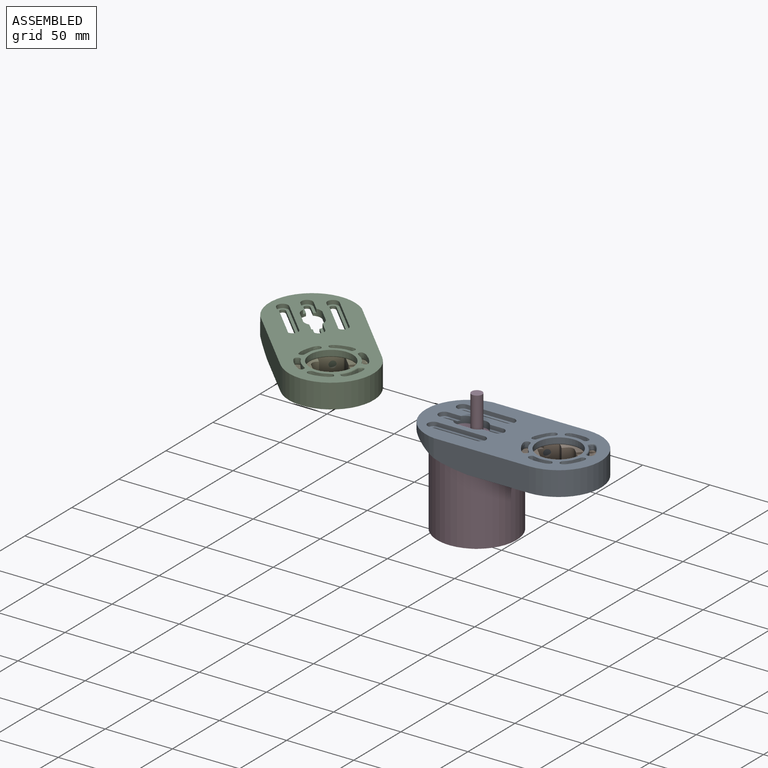
[diagram: assembled view]
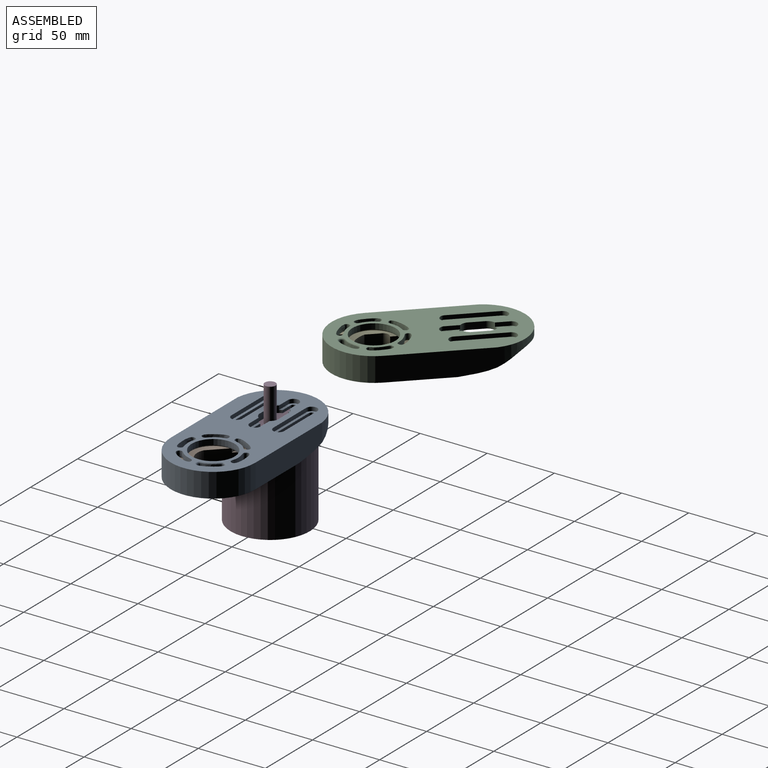
[diagram: assembled view, second angle]
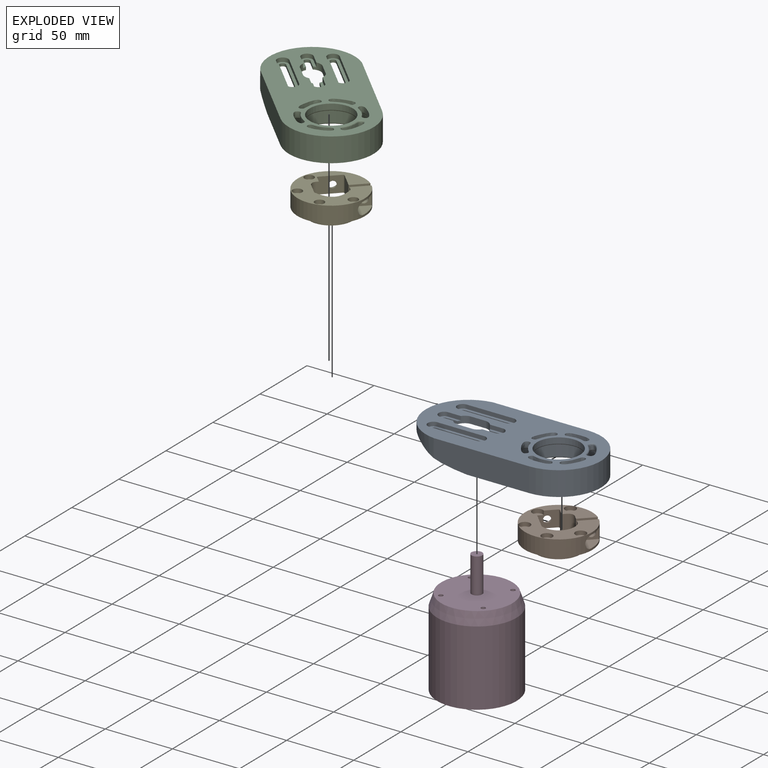
[diagram: exploded view]
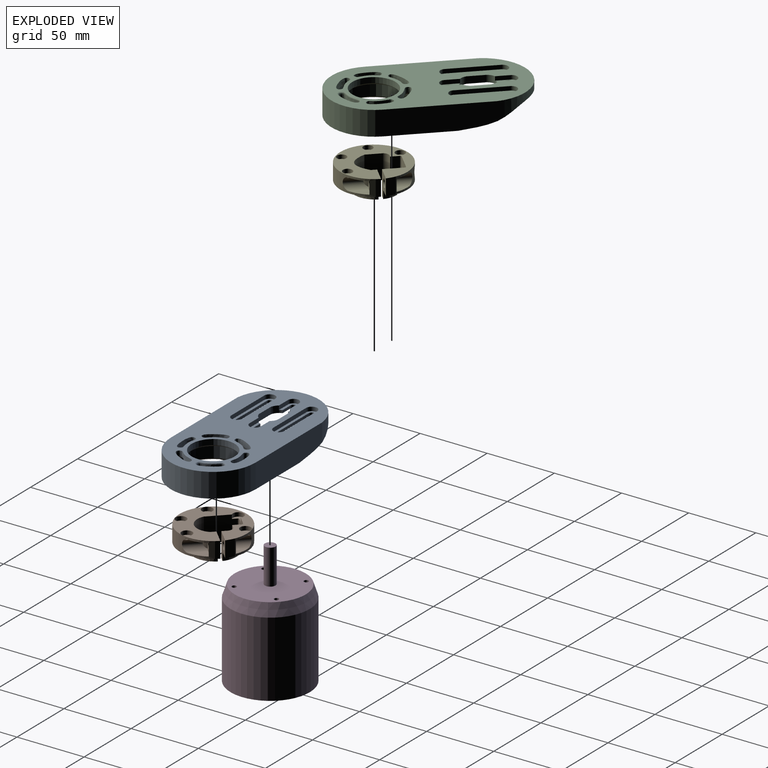
[diagram: exploded view, second angle]
ASSEMBLY  parts=5 mates=3
PART A: 75 faces, bbox 130.8x68.8x18.5 mm
  f0: cylinder r=2.1mm len=4.2mm, axis (0,0,1), area 13.2mm2, adj f1,f14,f38,f69
  f1: plane 35x2mm, normal (0,1,0), area 70mm2, adj f0,f2,f38,f69
  f2: cylinder r=2.1mm len=4.2mm, axis (0,0,1), area 13.2mm2, adj f1,f14,f38,f69
  f3: plane 35x2mm, normal (0,-1,0), area 70mm2, adj f4,f15,f38,f74
  f4: cylinder r=2.1mm len=4.2mm, axis (0,0,1), area 13.2mm2, adj f3,f5,f38,f74
  f5: plane 35x2mm, normal (0,1,0), area 70mm2, adj f4,f15,f38,f74
  f6: plane 8.91x2mm, normal (0,1,0), area 17.8mm2, adj f7,f23,f38,f58
  f7: cylinder r=2.13mm len=4.2mm, axis (0,0,1), area 12mm2, adj f6,f8,f38,f58
  f8: plane 8.91x2mm, normal (0,-1,0), area 17.8mm2, adj f7,f9,f38,f58
  f9: cylinder r=7.08mm len=5.7mm, axis (0,0,1), area 32.9mm2, adj f8,f16,f24,f38,f58,f59
  f10: cylinder r=7.08mm len=5.7mm, axis (0,0,1), area 32.9mm2, adj f11,f16,f24,f38,f63,f64
  f11: plane 8.91x2mm, normal (0,-1,0), area 17.8mm2, adj f10,f12,f38,f64
  f12: cylinder r=2.13mm len=4.2mm, axis (0,0,1), area 12mm2, adj f11,f13,f38,f64
  f13: plane 8.91x2mm, normal (0,1,0), area 17.8mm2, adj f12,f28,f38,f64
  f14: plane 35x2mm, normal (0,-1,0), area 70mm2, adj f0,f2,f38,f69
  f15: cylinder r=2.1mm len=4.2mm, axis (0,0,1), area 13.2mm2, adj f3,f5,f38,f74
  f16: plane 130.36x63mm, normal (0,0,1), area 4916.6mm2, adj f9,f10,f17,f18,f22,f23,f24,f25
  f17: cylinder r=31.74mm len=63mm, axis (0,0,1), area 639.1mm2, adj f16,f18,f37,f42,f43,f44
  f18: plane 71.08x18mm, normal (0,-1,0), area 1235mm2, adj f16,f17,f35,f36,f42
  f19: plane 30.74x13.48mm, normal (0,-1,0), area 305mm2, adj f21,f35,f38,f39,f44,f56
  f20: plane 30.74x13.48mm, normal (0,1,0), area 305mm2, adj f21,f35,f38,f39,f42,f56
  f21: cylinder r=30.63mm len=60mm, axis (0,0,-1), area 128.2mm2, adj f19,f20,f38,f42,f43,f44
  f22: plane 12.2x5mm, normal (0,1,0), area 61mm2, adj f16,f23,f28,f38
  f23: cylinder r=7.08mm len=5.7mm, axis (0,0,1), area 32.9mm2, adj f6,f16,f22,f38,f58,f60
  f24: plane 12.2x5mm, normal (0,-1,0), area 61mm2, adj f9,f10,f16,f38
  f25: extruded ~8.93x5.32mm, area 81.5mm2, adj f16,f30,f48
  f26: extruded ~8.93x5.32mm, area 81.5mm2, adj f16,f33,f52
  f27: extruded ~15.38x10.91mm, area 160mm2, adj f16,f45
  f28: cylinder r=7.08mm len=5.7mm, axis (0,0,1), area 32.9mm2, adj f13,f16,f22,f38,f61,f64
  f29: extruded ~15.38x10.91mm, area 119.5mm2, adj f46,f55
  f30: extruded ~8.42x5.23mm, area 78.2mm2, adj f16,f25,f47
  f31: cylinder r=16mm len=32mm, axis (0,0,1), area 402.1mm2, adj f16,f49
  f32: extruded ~15.6x10.57mm, area 157.4mm2, adj f16,f50
  f33: extruded ~8.42x5.23mm, area 78.2mm2, adj f16,f26,f51
  f34: extruded ~15.58x10.55mm, area 159.3mm2, adj f16,f53
  f35: plane 78.03x63mm, normal (0,0,-1), area 1458.5mm2, adj f18,f19,f20,f36,f37,f42,f44,f54
  f36: cylinder r=31.5mm len=63mm, axis (0,0,1), area 1781.3mm2, adj f16,f18,f35,f37
  f37: plane 71.08x18mm, normal (0,1,0), area 1235mm2, adj f16,f17,f35,f36,f44
  f38: plane 71.35x60mm, normal (0,0,-1), area 2886.5mm2, adj f0,f1,f2,f3,f4,f5,f6,f7
  f39: cylinder r=33.27mm len=60mm, axis (0,0,-1), area 897.3mm2, adj f19,f20,f38,f56
  f40: plane 50x50mm, normal (0,0,-1), area 367.2mm2, adj f41,f45,f46,f47,f48,f49,f50,f51
  f41: cylinder r=25mm len=50mm, axis (0,0,-1), area 1885mm2, adj f40,f54
  f42: extruded ~51.27x24.42mm, area 61.1mm2, adj f17,f18,f20,f21,f35,f43
  f43: plane 16.21x1.05mm, normal (0,0,-1), area 3.6mm2, adj f17,f21,f42,f44
  f44: extruded ~51.27x24.42mm, area 61.1mm2, adj f17,f19,f21,f35,f37,f43
  f45: bspline ~17.44x12.94mm, area 66.4mm2, adj f27,f40
  f46: bspline ~17.45x12.94mm, area 66.3mm2, adj f29,f40
  f47: bspline ~16.6x7.25mm, area 32.5mm2, adj f30,f40,f48
  f48: bspline ~17.18x7.48mm, area 33.8mm2, adj f25,f40,f47
  f49: torus R=17mm, axis (0,0,-1), area 161.5mm2, adj f31,f40
  f50: bspline ~17.64x12.6mm, area 66.4mm2, adj f32,f40
  f51: bspline ~16.6x7.25mm, area 32.5mm2, adj f33,f40,f52
  f52: bspline ~17.18x7.48mm, area 33.8mm2, adj f26,f40,f51
  f53: bspline ~17.64x12.6mm, area 66.3mm2, adj f34,f40
  f54: torus R=26mm, axis (0,0,1), area 250.3mm2, adj f35,f41
  f55: bspline ~17.45x12.94mm, area 66.3mm2, adj f16,f29
  f56: torus R=34.27mm, axis (0,0,1), area 115.7mm2, adj f19,f20,f35,f39
  f57: cylinder r=4.13mm len=8.2mm, axis (0,0,1), area 35.9mm2, adj f16,f58,f59,f60
  f58: plane 13.67x8.2mm, normal (0,0,1), area 55.6mm2, adj f6,f7,f8,f9,f23,f57,f59,f60
  f59: plane 10.04x3mm, normal (0,-1,0), area 30.1mm2, adj f9,f16,f57,f58
  f60: plane 10.04x3mm, normal (0,1,0), area 30.1mm2, adj f16,f23,f57,f58
  f61: plane 10.04x3mm, normal (0,1,0), area 30.1mm2, adj f16,f28,f62,f64
  f62: cylinder r=4.13mm len=8.2mm, axis (0,0,1), area 35.9mm2, adj f16,f61,f63,f64
  f63: plane 10.04x3mm, normal (0,-1,0), area 30.1mm2, adj f10,f16,f62,f64
  f64: plane 13.67x8.2mm, normal (0,0,1), area 55.6mm2, adj f10,f11,f12,f13,f28,f61,f62,f63
  f65: cylinder r=4.1mm len=8.2mm, axis (0,0,1), area 38.6mm2, adj f16,f66,f68,f69
  f66: plane 35x3mm, normal (0,-1,0), area 105mm2, adj f16,f65,f67,f69
  f67: cylinder r=4.1mm len=8.2mm, axis (0,0,1), area 38.6mm2, adj f16,f66,f68,f69
  f68: plane 35x3mm, normal (0,1,0), area 105mm2, adj f16,f65,f67,f69
  f69: plane 43.2x8.2mm, normal (0,0,1), area 179mm2, adj f0,f1,f2,f14,f65,f66,f67,f68
  f70: plane 35x3mm, normal (0,1,0), area 105mm2, adj f16,f71,f73,f74
  f71: cylinder r=4.1mm len=8.2mm, axis (0,0,1), area 38.6mm2, adj f16,f70,f72,f74
  f72: plane 35x3mm, normal (0,-1,0), area 105mm2, adj f16,f71,f73,f74
  f73: cylinder r=4.1mm len=8.2mm, axis (0,0,1), area 38.6mm2, adj f16,f70,f72,f74
  f74: plane 43.2x8.2mm, normal (0,0,1), area 179mm2, adj f3,f4,f5,f15,f70,f71,f72,f73
PART B: 54 faces, bbox 50x50x18 mm
  f0: plane 50x50mm, normal (0,0,-1), area 1123.2mm2, adj f10,f11,f12,f33,f34,f35,f36,f37
  f1: cylinder r=2mm len=9mm, axis (0,0,1), area 113.1mm2, adj f6,f52
  f2: cylinder r=2mm len=9mm, axis (0,0,1), area 113.1mm2, adj f6,f49
  f3: cylinder r=2mm len=9mm, axis (0,0,1), area 113.1mm2, adj f6,f46
  f4: cylinder r=2mm len=9mm, axis (0,0,1), area 113.1mm2, adj f6,f50
  f5: cylinder r=1mm len=9mm, axis (0,0,-1), area 14.1mm2, adj f6,f35,f41,f45
  f6: plane 50x50mm, normal (0,0,1), area 1050mm2, adj f1,f2,f3,f4,f5,f7,f10,f11
  f7: cylinder r=16mm len=31.97mm, axis (0,0,-1), area 371.5mm2, adj f6,f8,f11,f35
  f8: plane 31.97x27.38mm, normal (0,0,1), area 192.8mm2, adj f7,f11,f35,f36,f37
  f9: cylinder r=3mm len=6mm, axis (0,-1,0), area 56.5mm2, adj f12,f29
  f10: cylinder r=25mm len=50mm, axis (0,0,-1), area 1482.3mm2, adj f0,f6,f11,f12,f13,f14,f15,f16
  f11: plane 18x13.75mm, normal (0,-1,0), area 165mm2, adj f0,f6,f7,f8,f10,f22,f37
  f12: plane 18x13.57mm, normal (0,1,0), area 162.3mm2, adj f0,f6,f9,f10,f32,f33,f38
  f13: cylinder r=4.7mm len=15.56mm, axis (0,-1,0), area 158.3mm2, adj f10,f14,f16,f17,f31,f48,f49
  f14: plane 13.21x8mm, normal (0,0,1), area 67.5mm2, adj f10,f13,f15,f17
  f15: plane 9x1mm, normal (-1,0,0), area 9mm2, adj f10,f14,f16,f17
  f16: plane 13.21x8mm, normal (0,0,-1), area 67.5mm2, adj f10,f13,f15,f17
  f17: plane 9.61x9mm, normal (0,1,0), area 57.1mm2, adj f13,f14,f15,f16,f22,f31
  f18: cylinder r=4.7mm len=11.56mm, axis (0,1,0), area 123.7mm2, adj f10,f19,f20,f21,f30,f46,f47
  f19: plane 9.21x6.91mm, normal (0,0,1), area 37mm2, adj f10,f18,f21
  f20: plane 9.21x6.91mm, normal (0,0,-1), area 37mm2, adj f10,f18,f21
  f21: plane 9.68x9mm, normal (0,-1,0), area 40.2mm2, adj f10,f18,f19,f20,f23,f24,f25,f26
  f22: cylinder r=3mm len=6mm, axis (0,-1,0), area 113.1mm2, adj f11,f17
  f23: plane 4x3.5mm, normal (0.5,0,0.87), area 16.2mm2, adj f21,f24,f28,f29
  f24: plane 4x3.5mm, normal (-0.5,0,0.87), area 16.2mm2, adj f21,f23,f25,f29
  f25: plane 4.04x4mm, normal (-1,0,0), area 16.2mm2, adj f21,f24,f26,f29
  f26: plane 4x3.5mm, normal (-0.5,0,-0.87), area 16.2mm2, adj f21,f25,f27,f29
  f27: plane 4x3.5mm, normal (0.5,0,-0.87), area 16.2mm2, adj f21,f26,f28,f29
  f28: plane 4.04x4mm, normal (1,0,0), area 16.2mm2, adj f21,f23,f27,f29
  f29: plane 8.08x7mm, normal (0,-1,0), area 14.2mm2, adj f9,f23,f24,f25,f26,f27,f28
  f30: cylinder r=16mm len=4.5mm, axis (0,0,-1), area 3mm2, adj f18,f21
  f31: cylinder r=16mm len=7.29mm, axis (0,0,-1), area 17.2mm2, adj f13,f17
  f32: cylinder r=16mm len=13.55mm, axis (0,0,-1), area 116.1mm2, adj f6,f12,f38,f40
  f33: plane 18x4.05mm, normal (-1,0,0), area 72.9mm2, adj f0,f12,f38,f39
  f34: plane 18x3.5mm, normal (0,1,0), area 63mm2, adj f0,f38,f39,f40
  f35: plane 20.96x18mm, normal (1,0,0), area 338.6mm2, adj f0,f5,f6,f7,f8,f36,f44,f45
  f36: cylinder r=11.91mm len=22.5mm, axis (0,0,-1), area 530.1mm2, adj f0,f8,f35,f37
  f37: plane 18x3.91mm, normal (-1,0,0), area 70.4mm2, adj f0,f8,f11,f36
  f38: plane 13.55x12.12mm, normal (0,0,1), area 60.2mm2, adj f12,f32,f33,f34,f39,f40
  f39: cylinder r=4mm len=18mm, axis (0,0,1), area 113.1mm2, adj f0,f33,f34,f38
  f40: plane 18x6mm, normal (-1,0,0), area 105mm2, adj f0,f6,f32,f34,f38,f42
  f41: plane 13x12mm, normal (0,1,0), area 123.8mm2, adj f0,f5,f6,f42,f43,f44,f45
  f42: cylinder r=1mm len=12mm, axis (0,0,-1), area 18.8mm2, adj f0,f6,f40,f41
  f43: cone r=5mm half-angle=19.8deg, axis (0,-1,0), area 156.7mm2, adj f10,f41
  f44: cylinder r=4mm len=7.93mm, axis (0,0,-1), area 50.4mm2, adj f0,f35,f41,f45
  f45: plane 7.93x7.79mm, normal (0,0,-1), area 29mm2, adj f5,f35,f41,f44
  f46: plane 8x7.25mm, normal (0,0,-1), area 35.3mm2, adj f3,f18,f47
  f47: cylinder r=4mm len=8mm, axis (0,0,-1), area 72.9mm2, adj f0,f18,f46
  f48: cylinder r=4mm len=8mm, axis (0,0,-1), area 72.9mm2, adj f0,f13,f49
  f49: plane 8x7.25mm, normal (0,0,-1), area 35.3mm2, adj f2,f13,f48
  f50: plane 8x8mm, normal (0,0,-1), area 37.7mm2, adj f4,f51
  f51: cylinder r=4mm len=8mm, axis (0,0,-1), area 75.4mm2, adj f0,f50
  f52: plane 8x8mm, normal (0,0,-1), area 37.7mm2, adj f1,f53
  f53: cylinder r=4mm len=8mm, axis (0,0,-1), area 75.4mm2, adj f0,f52
PART C: same geometry as A
PART D: 19 faces, bbox 59x102.2x59 mm
  f0: cylinder r=8.25mm len=16.5mm, axis (0,-1,0), area 103.7mm2, adj f3,f5
  f1: cylinder r=29.5mm len=59mm, axis (0,1,0), area 10379.8mm2, adj f7,f8
  f2: plane 53x53mm, normal (0,1,0), area 2121.3mm2, adj f8,f9,f11,f13,f15,f17
  f3: plane 29x29mm, normal (0,-1,0), area 446.7mm2, adj f0,f7
  f4: cylinder r=5mm len=10mm, axis (0,-1,0), area 62.8mm2, adj f5,f6
  f5: plane 16.5x16.5mm, normal (0,-1,0), area 135.3mm2, adj f0,f4
  f6: plane 10x10mm, normal (0,-1,0), area 78.5mm2, adj f4
  f7: cone r=14.5mm half-angle=65deg, axis (0,1,0), area 2288.1mm2, adj f1,f3
  f8: cone r=29.5mm half-angle=18.4deg, axis (0,-1,0), area 1669mm2, adj f1,f2
  f9: cylinder r=4mm len=26.2mm, axis (0,-1,0), area 658.5mm2, adj f2,f10
  f10: plane 8x8mm, normal (0,1,0), area 50.3mm2, adj f9
  f11: cylinder r=1.66mm len=4mm, axis (0,1,0), area 41.7mm2, adj f2,f12
  f12: plane 3.32x3.32mm, normal (0,1,0), area 8.7mm2, adj f11
  f13: cylinder r=1.66mm len=4mm, axis (0,1,0), area 41.7mm2, adj f2,f14
  f14: plane 3.32x3.32mm, normal (0,1,0), area 8.7mm2, adj f13
  f15: cylinder r=1.66mm len=4mm, axis (0,1,0), area 41.7mm2, adj f2,f16
  f16: plane 3.32x3.32mm, normal (0,1,0), area 8.7mm2, adj f15
  f17: cylinder r=1.66mm len=4mm, axis (0,1,0), area 41.7mm2, adj f2,f18
  f18: plane 3.32x3.32mm, normal (0,1,0), area 8.7mm2, adj f17
PART E: 53 faces, bbox 50x50x18 mm
  f0: cylinder r=2mm len=9mm, axis (0,0,1), area 113.1mm2, adj f12,f50
  f1: cylinder r=2mm len=9mm, axis (0,0,1), area 113.1mm2, adj f12,f45
  f2: cylinder r=2mm len=9mm, axis (0,0,1), area 113.1mm2, adj f12,f48
  f3: cylinder r=2mm len=9mm, axis (0,0,1), area 113.1mm2, adj f12,f46
  f4: plane 50x50mm, normal (0,0,-1), area 1192.6mm2, adj f6,f9,f10,f11,f33,f34,f35,f36
  f5: cylinder r=16mm len=31.97mm, axis (0,0,-1), area 411.1mm2, adj f7,f11,f12,f41
  f6: plane 18x1.5mm, normal (0,1,0), area 27mm2, adj f4,f7,f39,f41
  f7: plane 31.97x30.93mm, normal (0,0,1), area 222mm2, adj f5,f6,f11,f34,f35,f36,f37,f39
  f8: cylinder r=3mm len=6mm, axis (0,-1,0), area 56.5mm2, adj f10,f29
  f9: cylinder r=25mm len=50mm, axis (0,0,-1), area 1482.4mm2, adj f4,f10,f11,f12,f13,f14,f15,f16
  f10: plane 18x13.57mm, normal (0,1,0), area 162.3mm2, adj f4,f8,f9,f12,f32,f33,f38
  f11: plane 18x13.75mm, normal (0,-1,0), area 165mm2, adj f4,f5,f7,f9,f12,f22,f37
  f12: plane 50x50mm, normal (0,0,1), area 1046.4mm2, adj f0,f1,f2,f3,f5,f9,f10,f11
  f13: plane 13.21x8mm, normal (0,0,1), area 67.5mm2, adj f9,f14,f16,f17
  f14: plane 9x1mm, normal (-1,0,0), area 9mm2, adj f9,f13,f15,f17
  f15: plane 13.21x8mm, normal (0,0,-1), area 67.5mm2, adj f9,f14,f16,f17
  f16: cylinder r=4.7mm len=15.56mm, axis (0,-1,0), area 161mm2, adj f9,f13,f15,f17,f31,f44,f45
  f17: plane 9.61x9mm, normal (0,1,0), area 57.1mm2, adj f13,f14,f15,f16,f22,f31
  f18: plane 9.21x6.91mm, normal (0,0,1), area 37mm2, adj f9,f20,f21
  f19: plane 9.21x6.91mm, normal (0,0,-1), area 37mm2, adj f9,f20,f21
  f20: cylinder r=4.7mm len=11.56mm, axis (0,1,0), area 127.1mm2, adj f9,f18,f19,f21,f30
  f21: plane 9.68x9mm, normal (0,-1,0), area 40.2mm2, adj f9,f18,f19,f20,f23,f24,f25,f26
  f22: cylinder r=3mm len=6mm, axis (0,-1,0), area 113.1mm2, adj f11,f17
  f23: plane 4x3.5mm, normal (0.5,0,0.87), area 16.2mm2, adj f21,f24,f28,f29
  f24: plane 4x3.5mm, normal (-0.5,0,0.87), area 16.2mm2, adj f21,f23,f25,f29
  f25: plane 4.04x4mm, normal (-1,0,0), area 16.2mm2, adj f21,f24,f26,f29
  f26: plane 4x3.5mm, normal (-0.5,0,-0.87), area 16.2mm2, adj f21,f25,f27,f29
  f27: plane 4x3.5mm, normal (0.5,0,-0.87), area 16.2mm2, adj f21,f26,f28,f29
  f28: plane 4.04x4mm, normal (1,0,0), area 16.2mm2, adj f21,f23,f27,f29
  f29: plane 8.08x7mm, normal (0,-1,0), area 14.2mm2, adj f8,f23,f24,f25,f26,f27,f28
  f30: cylinder r=16mm len=4.5mm, axis (0,0,-1), area 3mm2, adj f20,f21
  f31: cylinder r=16mm len=7.29mm, axis (0,0,-1), area 17.2mm2, adj f16,f17
  f32: cylinder r=16mm len=9.38mm, axis (0,0,-1), area 63.9mm2, adj f10,f12,f33,f38
  f33: plane 18x14.05mm, normal (-1,0,0), area 224.9mm2, adj f4,f10,f12,f32,f38,f42
  f34: plane 18x10.96mm, normal (1,0,0), area 197.3mm2, adj f4,f7,f35,f39
  f35: extruded ~18x11.25mm, area 261.2mm2, adj f4,f7,f34,f36
  f36: extruded ~18x11.25mm, area 261.2mm2, adj f4,f7,f35,f37
  f37: plane 18x3.91mm, normal (-1,0,0), area 70.4mm2, adj f4,f7,f11,f36
  f38: plane 9.38x4.62mm, normal (0,0,1), area 27.8mm2, adj f10,f32,f33
  f39: cylinder r=4mm len=18mm, axis (0,0,-1), area 113.1mm2, adj f4,f6,f7,f34
  f40: plane 15x12mm, normal (0,1,0), area 160.4mm2, adj f4,f12,f42,f43,f52
  f41: plane 18x6mm, normal (1,0,0), area 101.3mm2, adj f4,f5,f6,f7,f12,f43
  f42: cylinder r=1mm len=12mm, axis (0,0,1), area 18.8mm2, adj f4,f12,f33,f40
  f43: cylinder r=1mm len=12mm, axis (0,0,1), area 18.8mm2, adj f4,f12,f40,f41
  f44: cylinder r=3.5mm len=7mm, axis (0,0,-1), area 65.5mm2, adj f4,f16,f45
  f45: plane 7x6.75mm, normal (0,0,-1), area 25.5mm2, adj f1,f16,f44
  f46: plane 7x7mm, normal (0,0,-1), area 25.9mm2, adj f3,f47
  f47: cylinder r=3.5mm len=7mm, axis (0,0,-1), area 66mm2, adj f4,f46
  f48: plane 7x7mm, normal (0,0,-1), area 25.9mm2, adj f2,f49
  f49: cylinder r=3.5mm len=7mm, axis (0,0,-1), area 66mm2, adj f4,f48
  f50: plane 7x7mm, normal (0,0,-1), area 25.9mm2, adj f0,f51
  f51: cylinder r=3.5mm len=7mm, axis (0,0,-1), area 66mm2, adj f4,f50
  f52: cone r=2.5mm half-angle=19.8deg, axis (0,-1,0), area 156.7mm2, adj f9,f40
PLACE A t=(85.26,38.23,-8.99)mm
PLACE B rot(axis=(-0.92,-0.38,0),180deg) t=(183.07,-0.71,4.01)mm
PLACE C rot(axis=(0,0,-1),45deg) t=(-28.38,96.72,4.21)mm
PLACE D rot(axis=(0.28,-0.68,-0.68),148.6deg) t=(122.27,-0.88,4.01)mm
PLACE E rot(axis=(-0.92,-0.38,0),180deg) t=(13.24,0.02,17.21)mm
MATE revolute E.f9 <-> C.f31  axis (0,0,1) through (13.24,0.02,17.21)mm
MATE planar D.f1 <-> A.f38  axis (0,0,1) through (122.27,-0.88,4.01)mm
MATE revolute B.f10 <-> A.f31  axis (0,0,1) through (183.07,-0.71,4.01)mm
